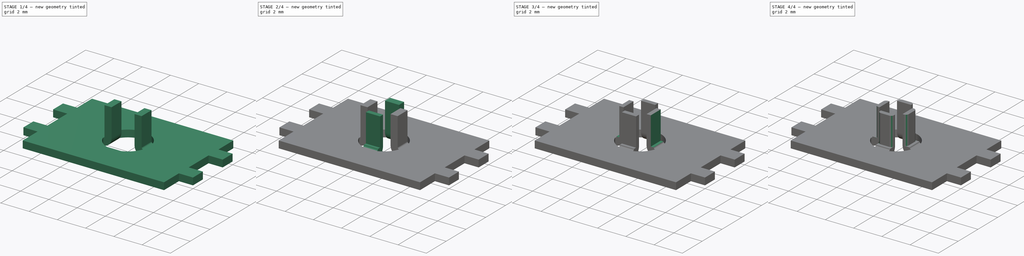
[diagram: build sequence overview — one tinted view per stage of 4, left to right]
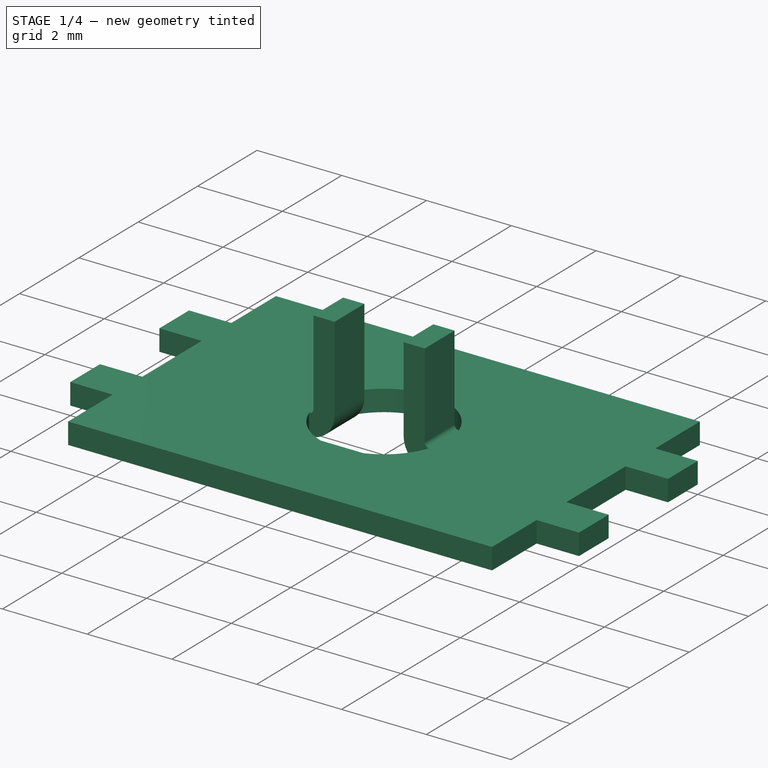
[diagram: stage 1 of 4 — iso view after this stage's code; geometry added in this stage tinted green]
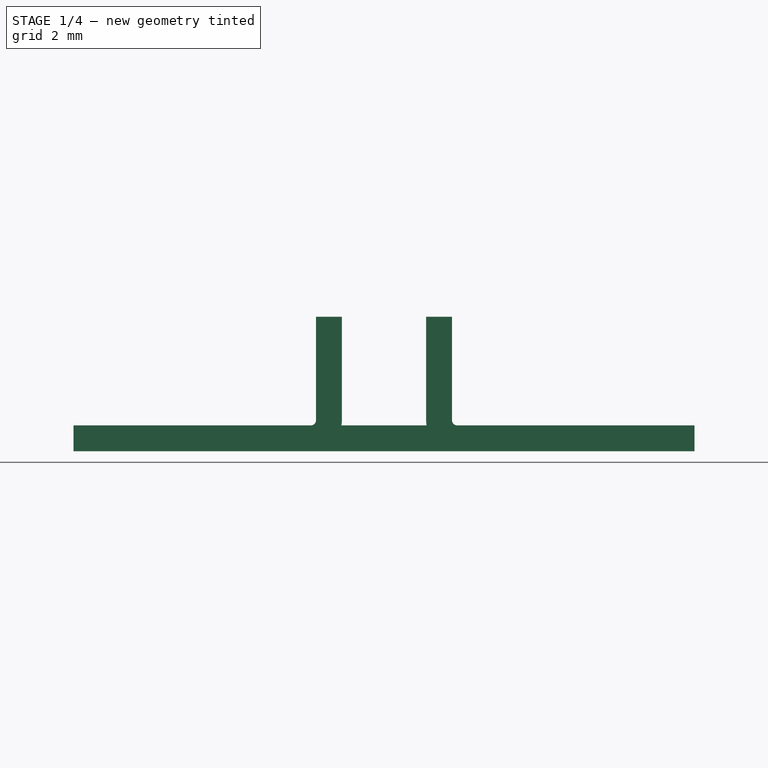
[diagram: stage 1 of 4 — front view after this stage's code; geometry added in this stage tinted green]
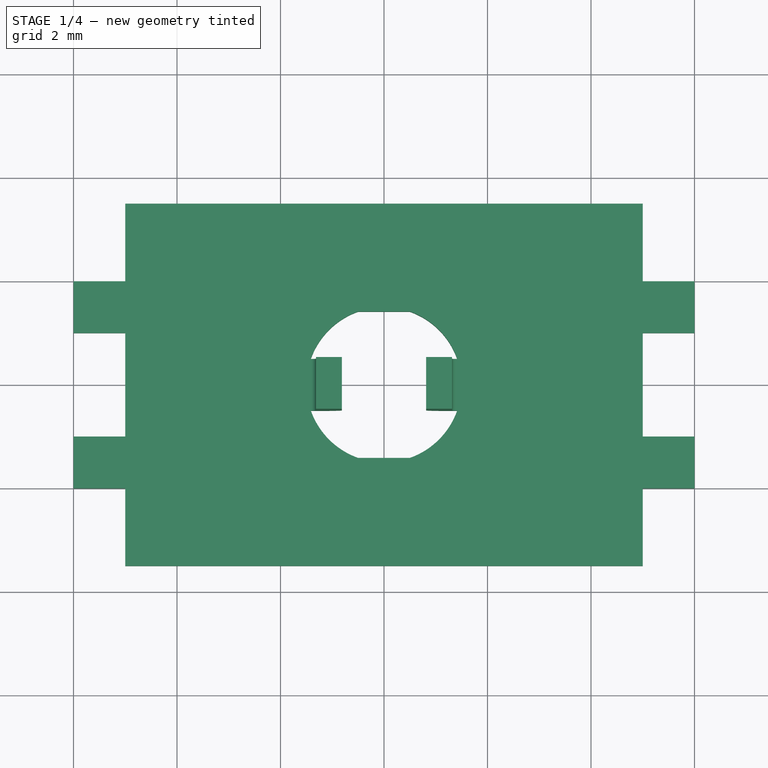
[diagram: stage 1 of 4 — top view after this stage's code; geometry added in this stage tinted green]
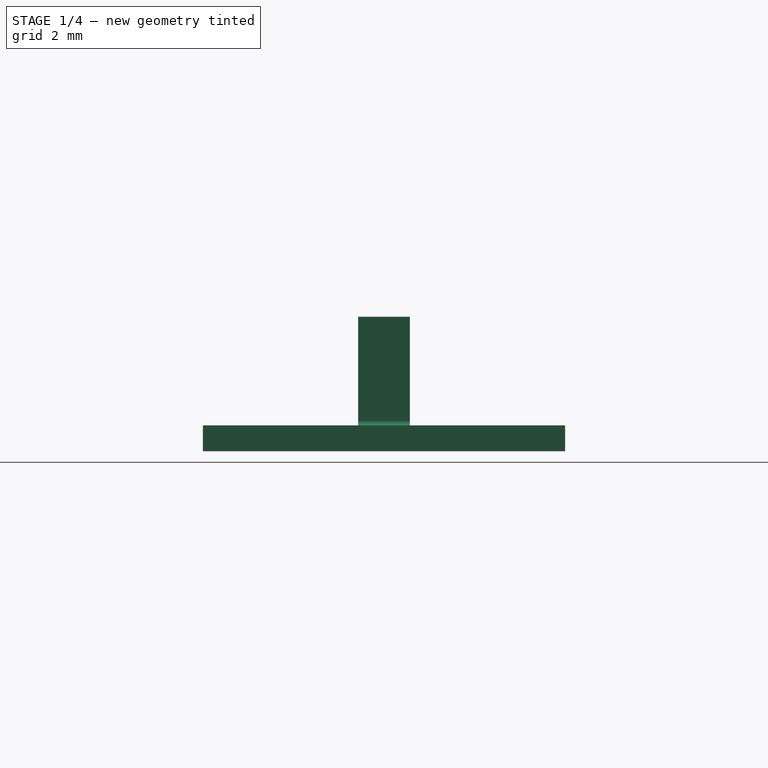
[diagram: stage 1 of 4 — right view after this stage's code; geometry added in this stage tinted green]
FCSTD DOCUMENT  (FreeCAD 0.20R29177 +233 (Git))
Label: valve11
License: All rights reserved
LicenseURL: http://en.wikipedia.org/wiki/All_rights_reserved
objects: PartDesign::Pocket×5, PartDesign::FeaturePython×4, PartDesign::Fillet×4, Sketcher::SketchObject×2, Spreadsheet::Sheet×1, PartDesign::Pad×1, PartDesign::Body×1
note: 27 computed .brp shape members not serialized (recipe doc carries the construction recipe); baked Part::Feature solids carry a one-line shape summary decoded from their .brp

FEATURE [Spreadsheet::Sheet] Spreadsheet
  cells = B5=cruciform; B7=parallel; C7=magnet; D7=hand; B8=ln ; C8(mg_ln)=7; D8(hand_ln)=12; F8=brsct; G8(brs)=2; B9=w ; C9(mg_w)=10; D9(hand_w)=4; B10=fln; D10(hand_fln)=2; F10=filet; G10(flt)=0.2; B11=rf; D11(hand_rf)=0.1; B12=th; D12(v_th)=0.5; F12=shlif; G12(shlf)=0.2
FEATURE [Sketcher::SketchObject] Sketch
  FullyConstrained = false
  MapMode = 5
  Support = -> [XY_Plane]
  expr: Constraints[19] = Spreadsheet.mg_w
  expr: Constraints[20] = Spreadsheet.mg_ln
  expr: Constraints[8] = Spreadsheet.hand_ln
  expr: Constraints[9] = Spreadsheet.hand_w
  sketch-geometry (20):
    g0: LineSegment StartX=-6 StartY=2 StartZ=0 EndX=-5 EndY=2 EndZ=0
    g1: LineSegment StartX=6 StartY=2 StartZ=0 EndX=6 EndY=1 EndZ=0
    g2: LineSegment StartX=6 StartY=-2 StartZ=0 EndX=5 EndY=-2 EndZ=0
    g3: LineSegment StartX=-6 StartY=-2 StartZ=0 EndX=-6 EndY=-1 EndZ=0
    g4: LineSegment StartX=-5 StartY=3.5 StartZ=0 EndX=5 EndY=3.5 EndZ=0
    g5: LineSegment StartX=5 StartY=3.5 StartZ=0 EndX=5 EndY=2 EndZ=0
    g6: LineSegment StartX=5 StartY=-3.5 StartZ=0 EndX=-5 EndY=-3.5 EndZ=0
    g7: LineSegment StartX=-5 StartY=-3.5 StartZ=0 EndX=-5 EndY=-2 EndZ=0
    g8: LineSegment StartX=5 StartY=2 StartZ=0 EndX=6 EndY=2 EndZ=0
    g9: LineSegment StartX=-5 StartY=-2 StartZ=0 EndX=-6 EndY=-2 EndZ=0
    g10: LineSegment StartX=-5 StartY=2 StartZ=0 EndX=-5 EndY=3.5 EndZ=0
    g11: LineSegment StartX=5 StartY=-2 StartZ=0 EndX=5 EndY=-3.5 EndZ=0
    g12: LineSegment StartX=-6 StartY=-1 StartZ=0 EndX=-5 EndY=-1 EndZ=0
    g13: LineSegment StartX=-5 StartY=1 StartZ=0 EndX=-5 EndY=-1 EndZ=0
    g14: LineSegment StartX=-5 StartY=1 StartZ=0 EndX=-6 EndY=1 EndZ=0
    g15: LineSegment StartX=6 StartY=1 StartZ=0 EndX=5 EndY=1 EndZ=0
    g16: LineSegment StartX=5 StartY=1 StartZ=0 EndX=5 EndY=-1 EndZ=0
    g17: LineSegment StartX=5 StartY=-1 StartZ=0 EndX=6 EndY=-1 EndZ=0
    g18: LineSegment StartX=-6 StartY=1 StartZ=0 EndX=-6 EndY=2 EndZ=0
    g19: LineSegment StartX=6 StartY=-1 StartZ=0 EndX=6 EndY=-2 EndZ=0
  constraints (50):
    c: Coincident(g8,g1)
    c: Coincident(g19,g2)
    c: Coincident(g9,g3)
    c: Coincident(g18,g0)
    c: Horizontal(g0)
    c: Horizontal(g2)
    c: Vertical(g1)
    c: Vertical(g3)
    c: DistanceX(g0,g8) = 12
    c: DistanceY(g19,g1) = 4
    c: Symmetric(g19,g0,g-1)
    c: Coincident(g4,g5)
    c: Coincident(g11,g6)
    c: Coincident(g6,g7)
    c: Coincident(g10,g4)
    c: Horizontal(g4)
    c: Horizontal(g6)
    c: Vertical(g5)
    c: Vertical(g7)
    c: DistanceX(g4,g4) = 10
    c: DistanceY(g11,g5) = 7
    c: Symmetric(g11,g4,g-1)
    c: Tangent(g0,g8)
    c: Tangent(g2,g9)
    c: Coincident(g7,g9)
    c: Coincident(g10,g0)
    c: Tangent(g7,g10)
    c: Coincident(g5,g8)
    c: Coincident(g11,g2)
    c: Tangent(g5,g11)
    c: Horizontal(g12)
    c: Coincident(g13,g12)
    c: Vertical(g13)
    c: Coincident(g14,g13)
    c: Horizontal(g14)
    c: Horizontal(g15)
    c: Coincident(g16,g15)
    c: Vertical(g16)
    c: Coincident(g17,g16)
    c: Horizontal(g17)
    c: DistanceY(g13,g13) = 2
    c: DistanceY(g16,g16) = 2
    c: DistanceX(g12,g12) = 1
    c: DistanceX(g15,g15) = 1
    c: Distance(g0,g13) = 1
    c: Distance(g5,g15) = 1
    c: Coincident(g3,g12)
    c: Coincident(g18,g14)
    c: Coincident(g1,g15)
    c: Coincident(g19,g17)
FEATURE [PartDesign::Pad] Pad
  Direction = (0,0,1)
  Length = 0.5
  Length2 = 100
  Profile = -> Sketch
  Type = 0
  expr: Length = Spreadsheet.v_th
FEATURE [Sketcher::SketchObject] Sketch001
  FullyConstrained = true
  MapMode = 5
  Support = -> [XY_Plane]
  sketch-geometry (8):
    g0: ArcOfCircle CenterX=0 CenterY=0 CenterZ=0 NormalX=0 NormalY=0 NormalZ=1 AngleXU=0 Radius=1.5 StartAngle=3.48143 EndAngle=4.37255
    g1: LineSegment StartX=-0.5 StartY=1.41421 StartZ=0 EndX=0.5 EndY=1.41421 EndZ=0
    g2: LineSegment StartX=0.5 StartY=-1.41421 StartZ=0 EndX=-0.5 EndY=-1.41421 EndZ=0
    g3: LineSegment StartX=-1.41421 StartY=0.5 StartZ=0 EndX=-1.41421 EndY=-0.5 EndZ=0
    g4: LineSegment StartX=1.41421 StartY=0.5 StartZ=0 EndX=1.41421 EndY=-0.5 EndZ=0
    g5: ArcOfCircle CenterX=0 CenterY=0 CenterZ=0 NormalX=0 NormalY=0 NormalZ=1 AngleXU=0 Radius=1.5 StartAngle=1.91063 EndAngle=2.80176
    g6: ArcOfCircle CenterX=0 CenterY=0 CenterZ=0 NormalX=0 NormalY=0 NormalZ=1 AngleXU=0 Radius=1.5 StartAngle=0.339837 EndAngle=1.23096
    g7: ArcOfCircle CenterX=0 CenterY=0 CenterZ=0 NormalX=0 NormalY=0 NormalZ=1 AngleXU=0 Radius=1.5 StartAngle=5.05223 EndAngle=5.94335
  constraints (24):
    c: Coincident(g0,g-1)
    c: Diameter(g0) = 3
    c: Horizontal(g1)
    c: Horizontal(g2)
    c: Vertical(g3)
    c: Vertical(g4)
    c: DistanceX(g2,g2) = 1
    c: DistanceX(g1,g1) = 1
    c: DistanceY(g4,g4) = 1
    c: DistanceY(g3,g3) = 1
    c: Coincident(g5,g3)
    c: Coincident(g0,g3)
    c: Equal(g0,g5)
    c: Coincident(g6,g1)
    c: Coincident(g5,g1)
    c: Coincident(g0,g5)
    c: Equal(g0,g6)
    c: Coincident(g7,g4)
    c: Coincident(g6,g4)
    c: Coincident(g0,g6)
    c: Equal(g0,g7)
    c: Coincident(g0,g2)
    c: Coincident(g7,g2)
    c: Coincident(g0,g7)
FEATURE [PartDesign::Pocket] Pocket
  BaseFeature = -> Pad
  Direction = (0,0,-1)
  Length = 5
  Length2 = 5
  Profile = -> Sketch001
  ReferenceAxis = -> Sketch001 [N_Axis]
  Reversed = true
  Type = 1
FEATURE [PartDesign::FeaturePython] Bend  # WARN: FeaturePython — macro-defined, semantics opaque (R4)
  AutoMiter = true
  BaseFeature = -> Pocket
  BendType = 0
  LengthList = [2]
  LengthSpec = 0
  ReliefFactor = 0.7
  UseReliefFactor = false
  angle = 90
  baseObject = -> Pocket [Edge29]
  bendAList = [90]
  extend1 = 0
  extend2 = 0
  gap1 = 0
  gap2 = 0
  invert = false
  kfactor = 0.5
  length = 2
  maxExtendDist = 5
  minGap = 0.1
  minReliefGap = 1
  miterangle1 = 0
  miterangle2 = 0
  offset = 0
  radius = 0.1
  reliefType = 0
  reliefd = 1
  reliefw = 0.8
  sketchflip = false
  sketchinvert = false
  unfold = false
  expr: length = Spreadsheet.brs
FEATURE [PartDesign::FeaturePython] Bend001  # WARN: FeaturePython — macro-defined, semantics opaque (R4)
  AutoMiter = true
  BaseFeature = -> Bend
  BendType = 0
  LengthList = [2]
  LengthSpec = 0
  ReliefFactor = 0.7
  UseReliefFactor = false
  angle = 90
  baseObject = -> Bend [Edge47]
  bendAList = [90]
  extend1 = 0
  extend2 = 0
  gap1 = 0
  gap2 = 0
  invert = false
  kfactor = 0.5
  length = 2
  maxExtendDist = 5
  minGap = 0.1
  minReliefGap = 1
  miterangle1 = 0
  miterangle2 = 0
  offset = 0
  radius = 0.1
  reliefType = 0
  reliefd = 1
  reliefw = 0.8
  sketchflip = false
  sketchinvert = false
  unfold = false
  expr: length = Spreadsheet.brs
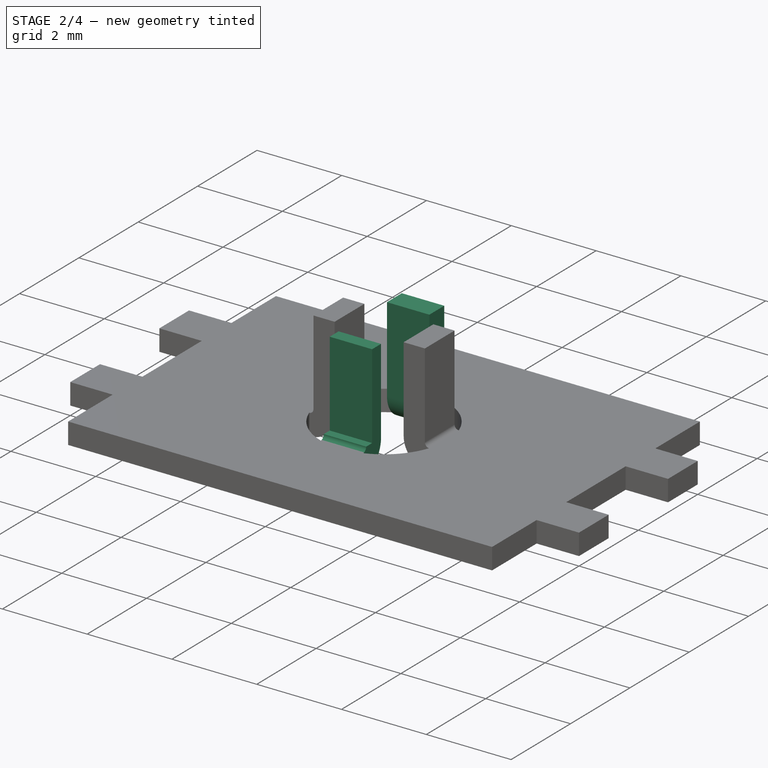
[diagram: stage 2 of 4 — iso view after this stage's code; geometry added in this stage tinted green]
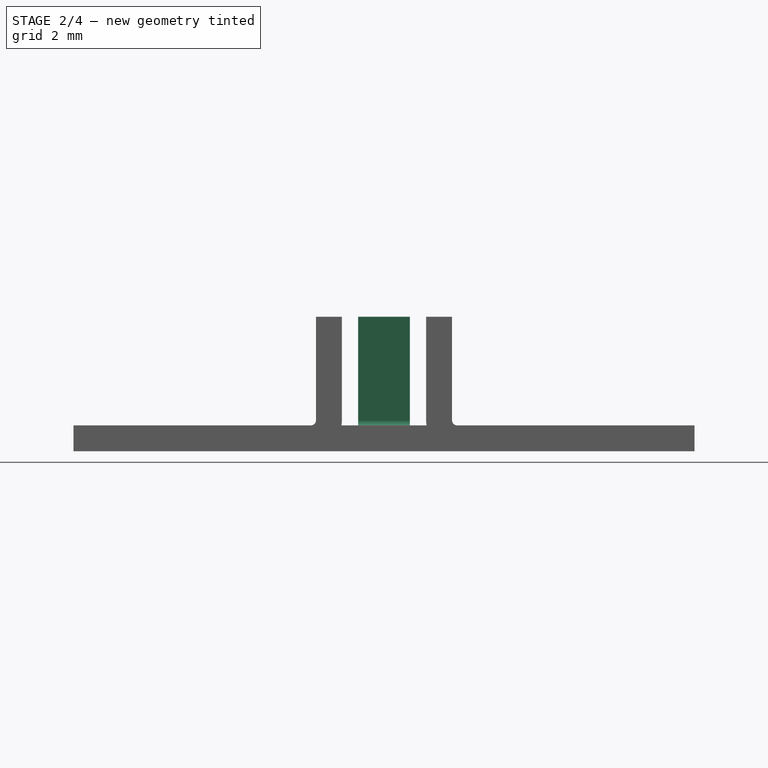
[diagram: stage 2 of 4 — front view after this stage's code; geometry added in this stage tinted green]
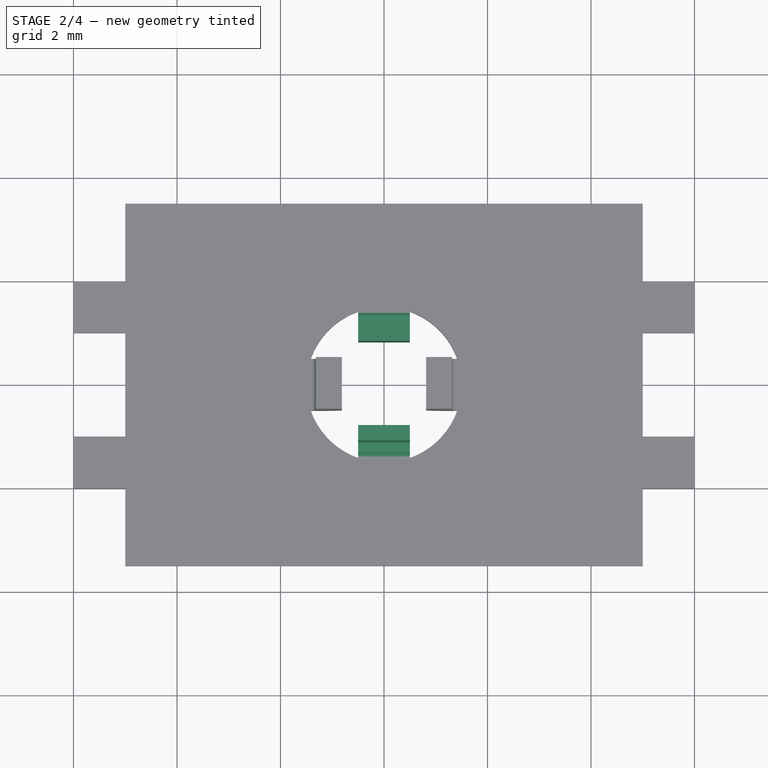
[diagram: stage 2 of 4 — top view after this stage's code; geometry added in this stage tinted green]
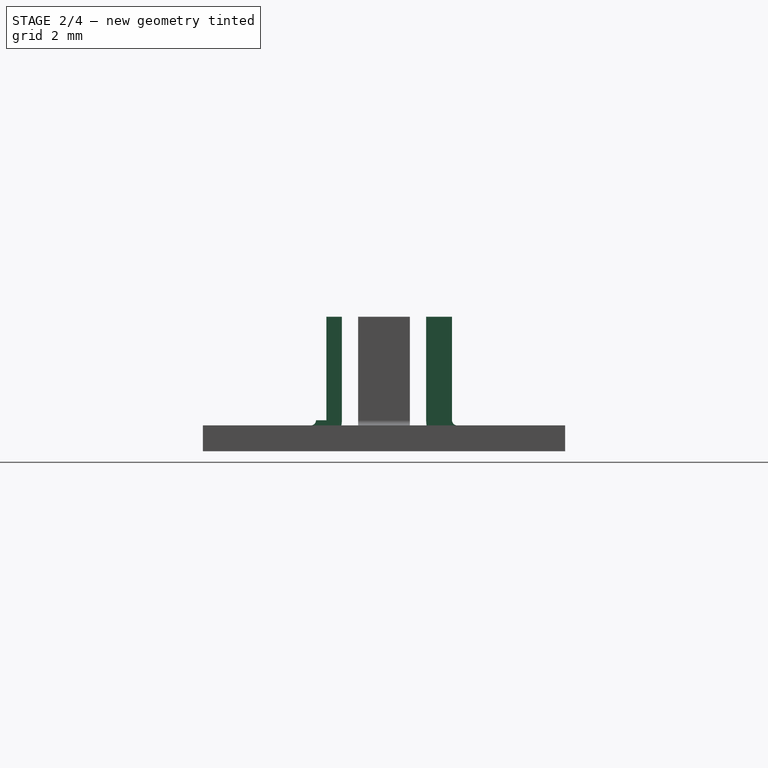
[diagram: stage 2 of 4 — right view after this stage's code; geometry added in this stage tinted green]
FEATURE [PartDesign::FeaturePython] Bend002  # WARN: FeaturePython — macro-defined, semantics opaque (R4)
  AutoMiter = true
  BaseFeature = -> Bend001
  BendType = 0
  LengthList = [2]
  LengthSpec = 0
  ReliefFactor = 0.7
  UseReliefFactor = false
  angle = 90
  baseObject = -> Bend001 [Edge49]
  bendAList = [90]
  extend1 = 0
  extend2 = 0
  gap1 = 0
  gap2 = 0
  invert = false
  kfactor = 0.5
  length = 2
  maxExtendDist = 5
  minGap = 0.1
  minReliefGap = 1
  miterangle1 = 0
  miterangle2 = 0
  offset = 0
  radius = 0.1
  reliefType = 0
  reliefd = 1
  reliefw = 0.8
  sketchflip = false
  sketchinvert = false
  unfold = false
  expr: length = Spreadsheet.brs
FEATURE [PartDesign::FeaturePython] Bend003  # WARN: FeaturePython — macro-defined, semantics opaque (R4)
  AutoMiter = true
  BaseFeature = -> Bend002
  BendType = 0
  LengthList = [2]
  LengthSpec = 0
  ReliefFactor = 0.7
  UseReliefFactor = false
  angle = 90
  baseObject = -> Bend002 [Edge46]
  bendAList = [90]
  extend1 = 0
  extend2 = 0
  gap1 = 0
  gap2 = 0
  invert = false
  kfactor = 0.5
  length = 2
  maxExtendDist = 5
  minGap = 0.1
  minReliefGap = 1
  miterangle1 = 0
  miterangle2 = 0
  offset = 0
  radius = 0.1
  reliefType = 0
  reliefd = 1
  reliefw = 0.8
  sketchflip = false
  sketchinvert = false
  unfold = false
  expr: length = Spreadsheet.brs
FEATURE [PartDesign::Pocket] Pocket001
  BaseFeature = -> Bend003
  Direction = (0,1,-1e-16)
  Length = 0.2
  Length2 = 5
  Profile = -> Bend003 [Face5]
  Type = 0
  expr: Length = Spreadsheet.shlf
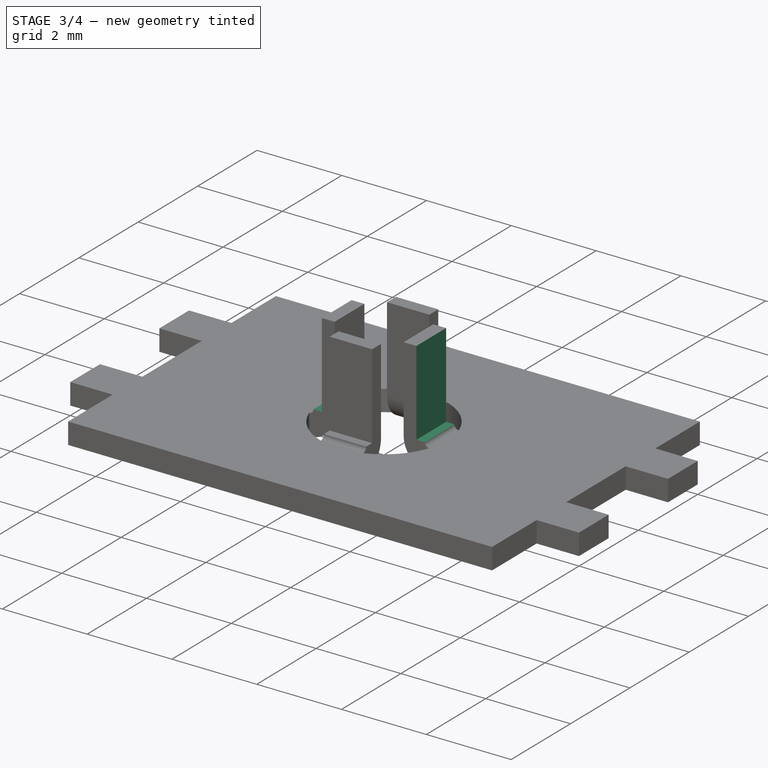
[diagram: stage 3 of 4 — iso view after this stage's code; geometry added in this stage tinted green]
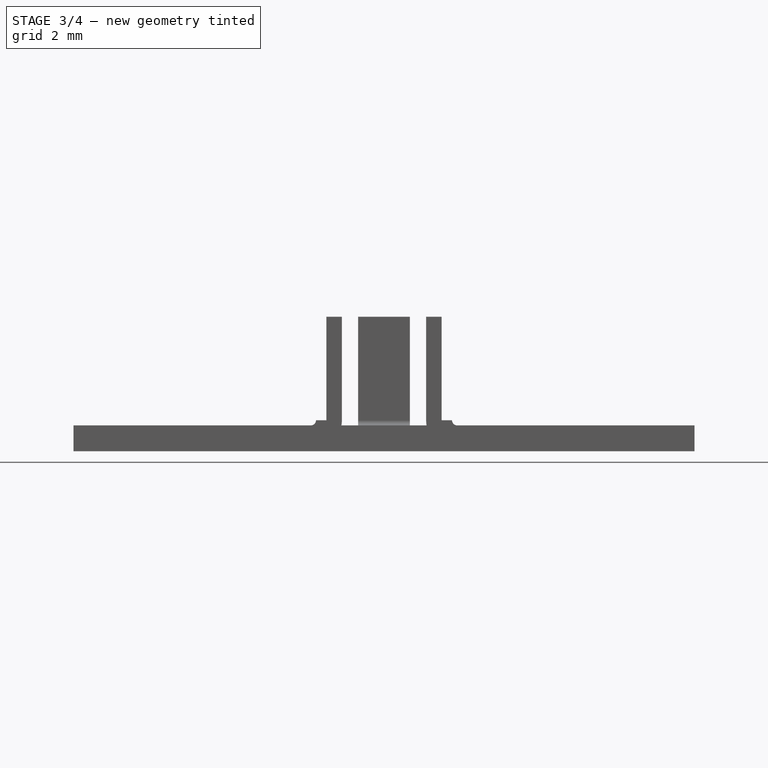
[diagram: stage 3 of 4 — front view after this stage's code; geometry added in this stage tinted green]
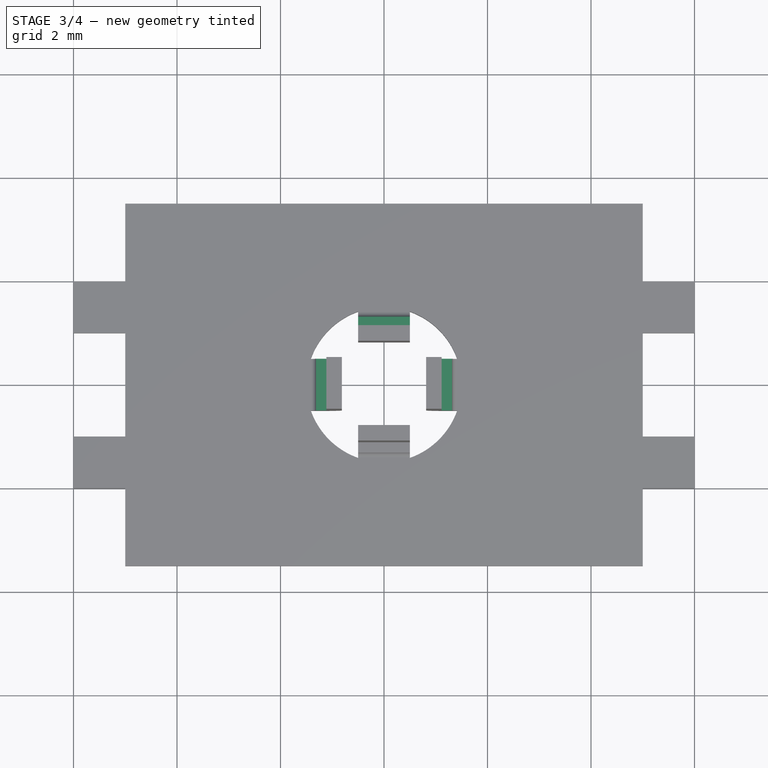
[diagram: stage 3 of 4 — top view after this stage's code; geometry added in this stage tinted green]
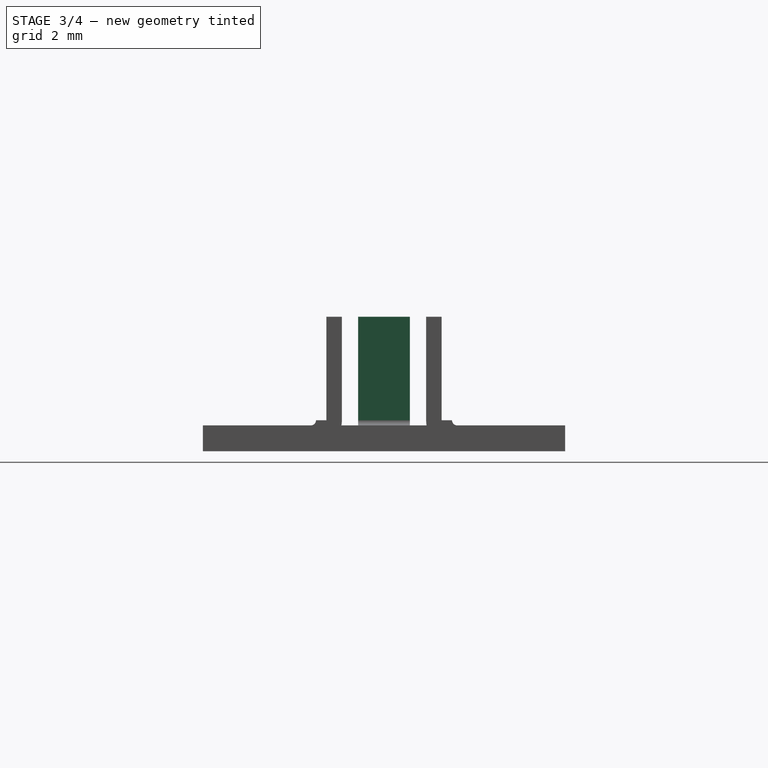
[diagram: stage 3 of 4 — right view after this stage's code; geometry added in this stage tinted green]
FEATURE [PartDesign::Pocket] Pocket002
  BaseFeature = -> Pocket001
  Direction = (-1,0,-1e-16)
  Length = 0.2
  Length2 = 5
  Profile = -> Pocket001 [Face54]
  Type = 0
  expr: Length = Spreadsheet.shlf
FEATURE [PartDesign::Pocket] Pocket003
  BaseFeature = -> Pocket002
  Direction = (0,-1,-1e-16)
  Length = 0.2
  Length2 = 5
  Profile = -> Pocket002 [Face55]
  Type = 0
  expr: Length = Spreadsheet.shlf
FEATURE [PartDesign::Pocket] Pocket004
  BaseFeature = -> Pocket003
  Direction = (1,0,-1e-16)
  Length = 0.2
  Length2 = 5
  Profile = -> Pocket003 [Face54]
  Type = 0
  expr: Length = Spreadsheet.shlf
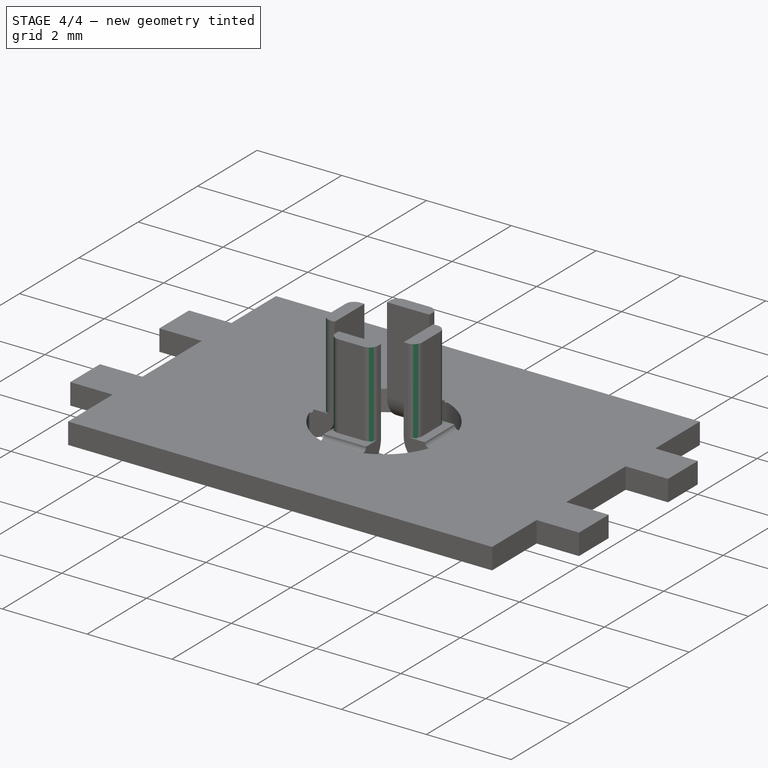
[diagram: stage 4 of 4 — iso view after this stage's code; geometry added in this stage tinted green]
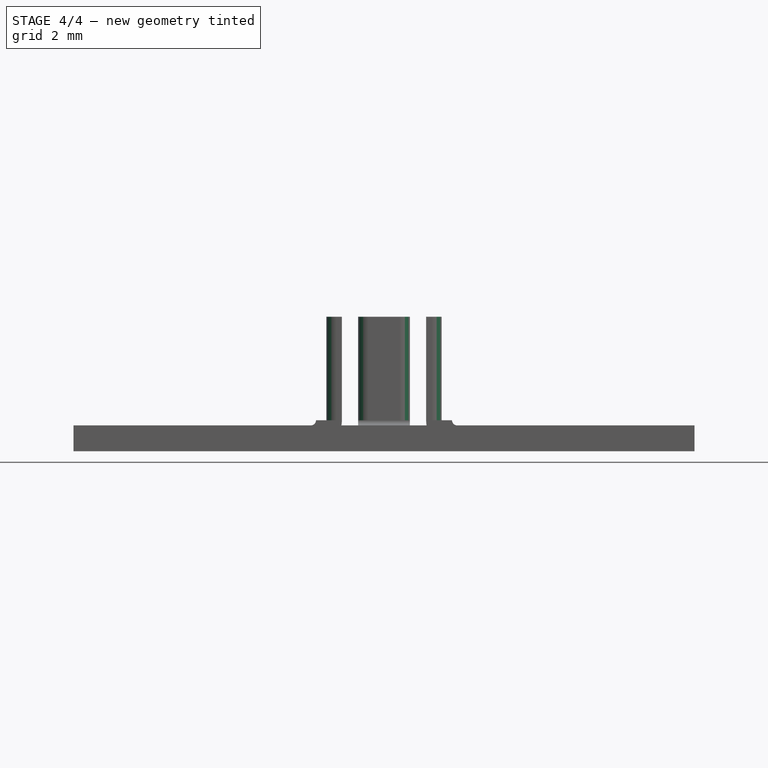
[diagram: stage 4 of 4 — front view after this stage's code; geometry added in this stage tinted green]
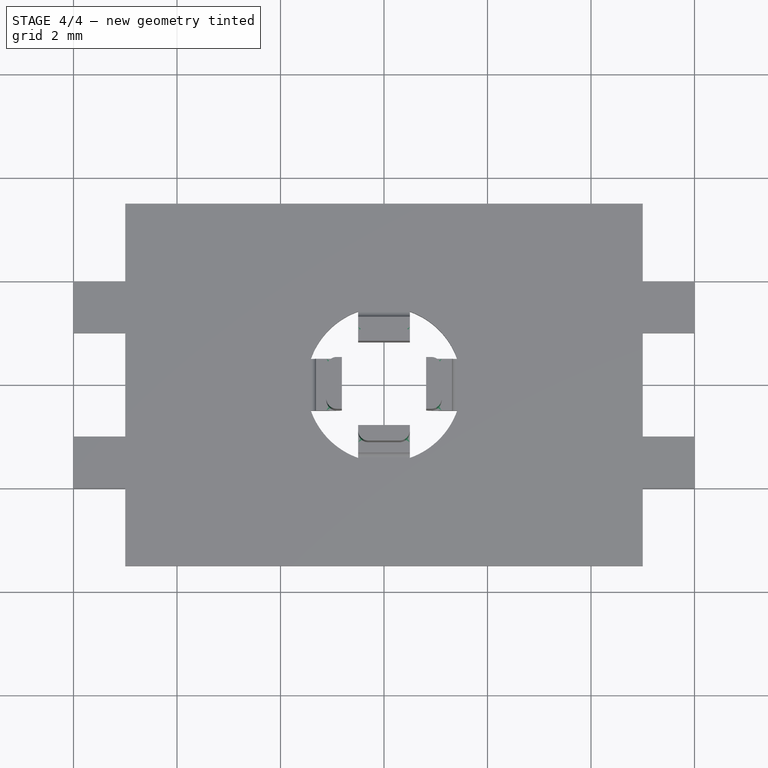
[diagram: stage 4 of 4 — top view after this stage's code; geometry added in this stage tinted green]
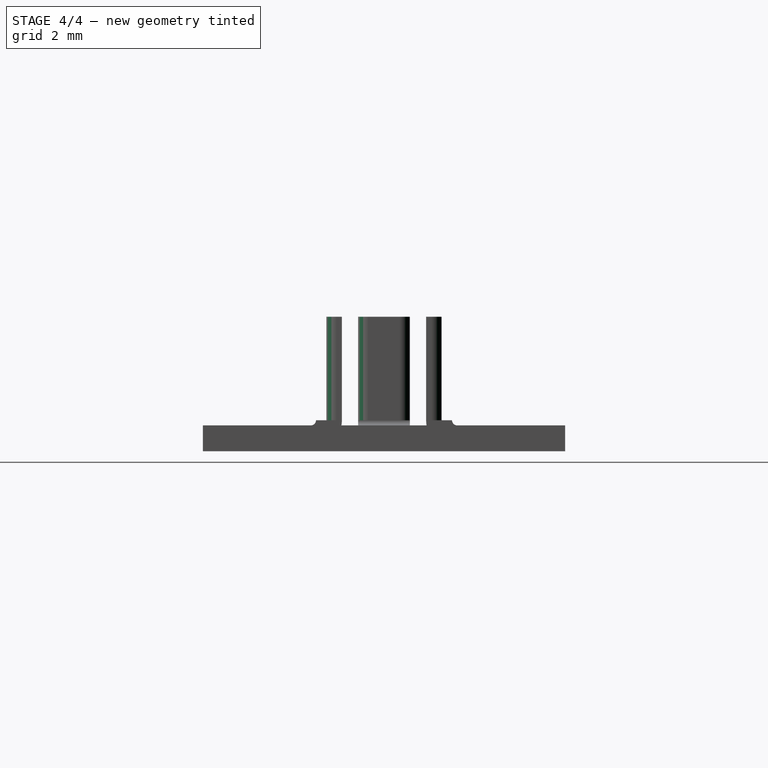
[diagram: stage 4 of 4 — right view after this stage's code; geometry added in this stage tinted green]
FEATURE [PartDesign::Fillet] Fillet
  Base = -> Pocket004 [Edge156,Edge158]
  BaseFeature = -> Pocket004
  Radius = 0.2
  SupportTransform = false
  UseAllEdges = false
  expr: Radius = Spreadsheet.flt
FEATURE [PartDesign::Fillet] Fillet001
  Base = -> Fillet [Edge136,Edge160]
  BaseFeature = -> Fillet
  Radius = 0.2
  SupportTransform = false
  UseAllEdges = false
  expr: Radius = Spreadsheet.flt
FEATURE [PartDesign::Fillet] Fillet002
  Base = -> Fillet001 [Edge159,Edge170]
  BaseFeature = -> Fillet001
  Radius = 0.2
  SupportTransform = false
  UseAllEdges = false
  expr: Radius = Spreadsheet.flt
FEATURE [PartDesign::Fillet] Fillet003
  Base = -> Fillet002 [Edge138,Edge166]
  BaseFeature = -> Fillet002
  Radius = 0.2
  SupportTransform = false
  UseAllEdges = false
  expr: Radius = Spreadsheet.flt
FEATURE [PartDesign::Body] Body
  Group = -> [Sketch,Pad,Sketch001,Pocket,Bend,Bend001,Bend002,Bend003,Pocket001,Pocket002,Pocket003,Pocket004,Fillet,Fillet001,Fillet002,Fillet003]
  Origin = -> Origin
  Tip = -> Fillet003
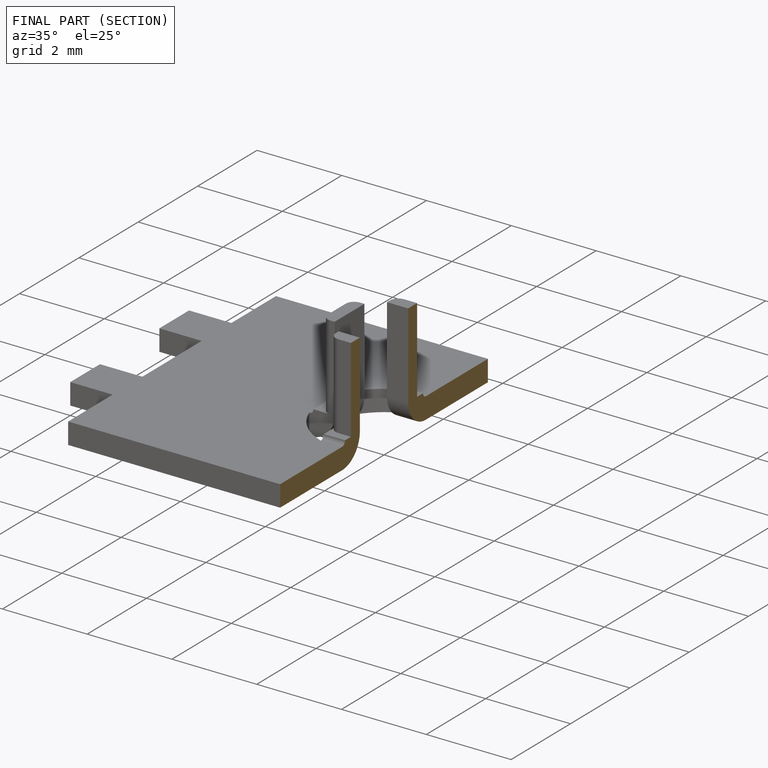
[diagram: finished part — half-section view (interior)]
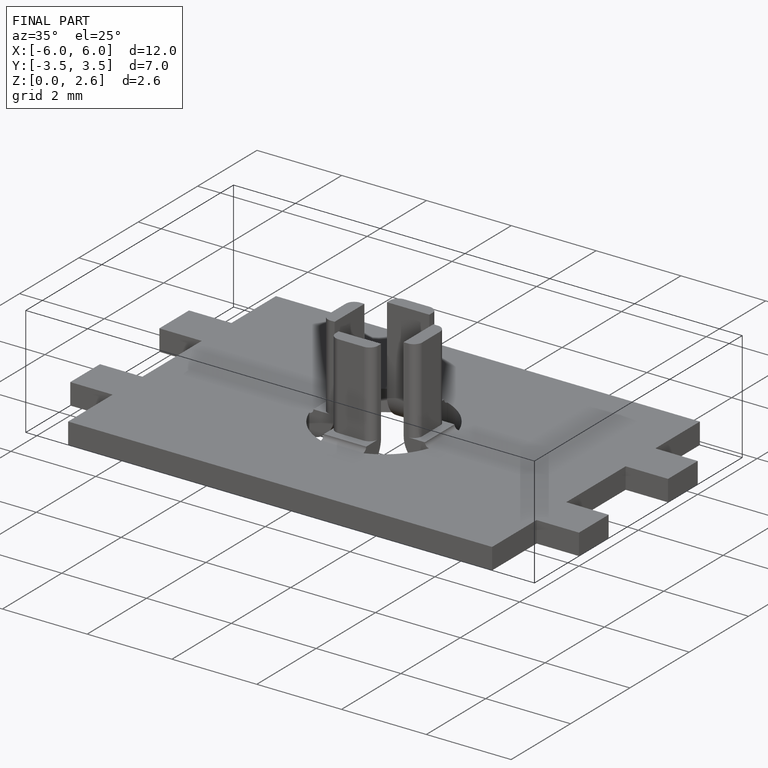
[diagram: finished part — iso view with bounding-box wireframe]
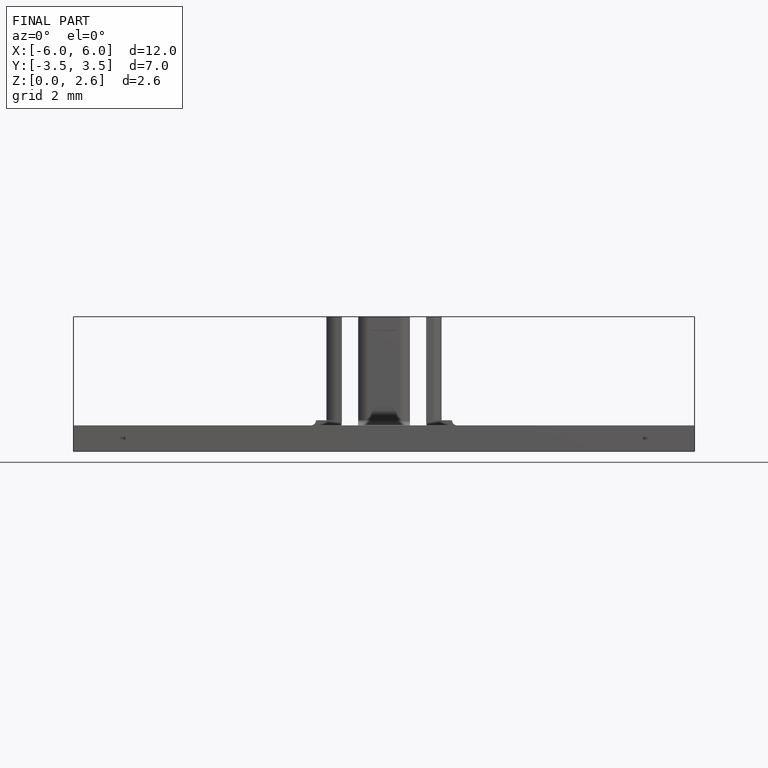
[diagram: finished part — front view with bounding-box wireframe]
